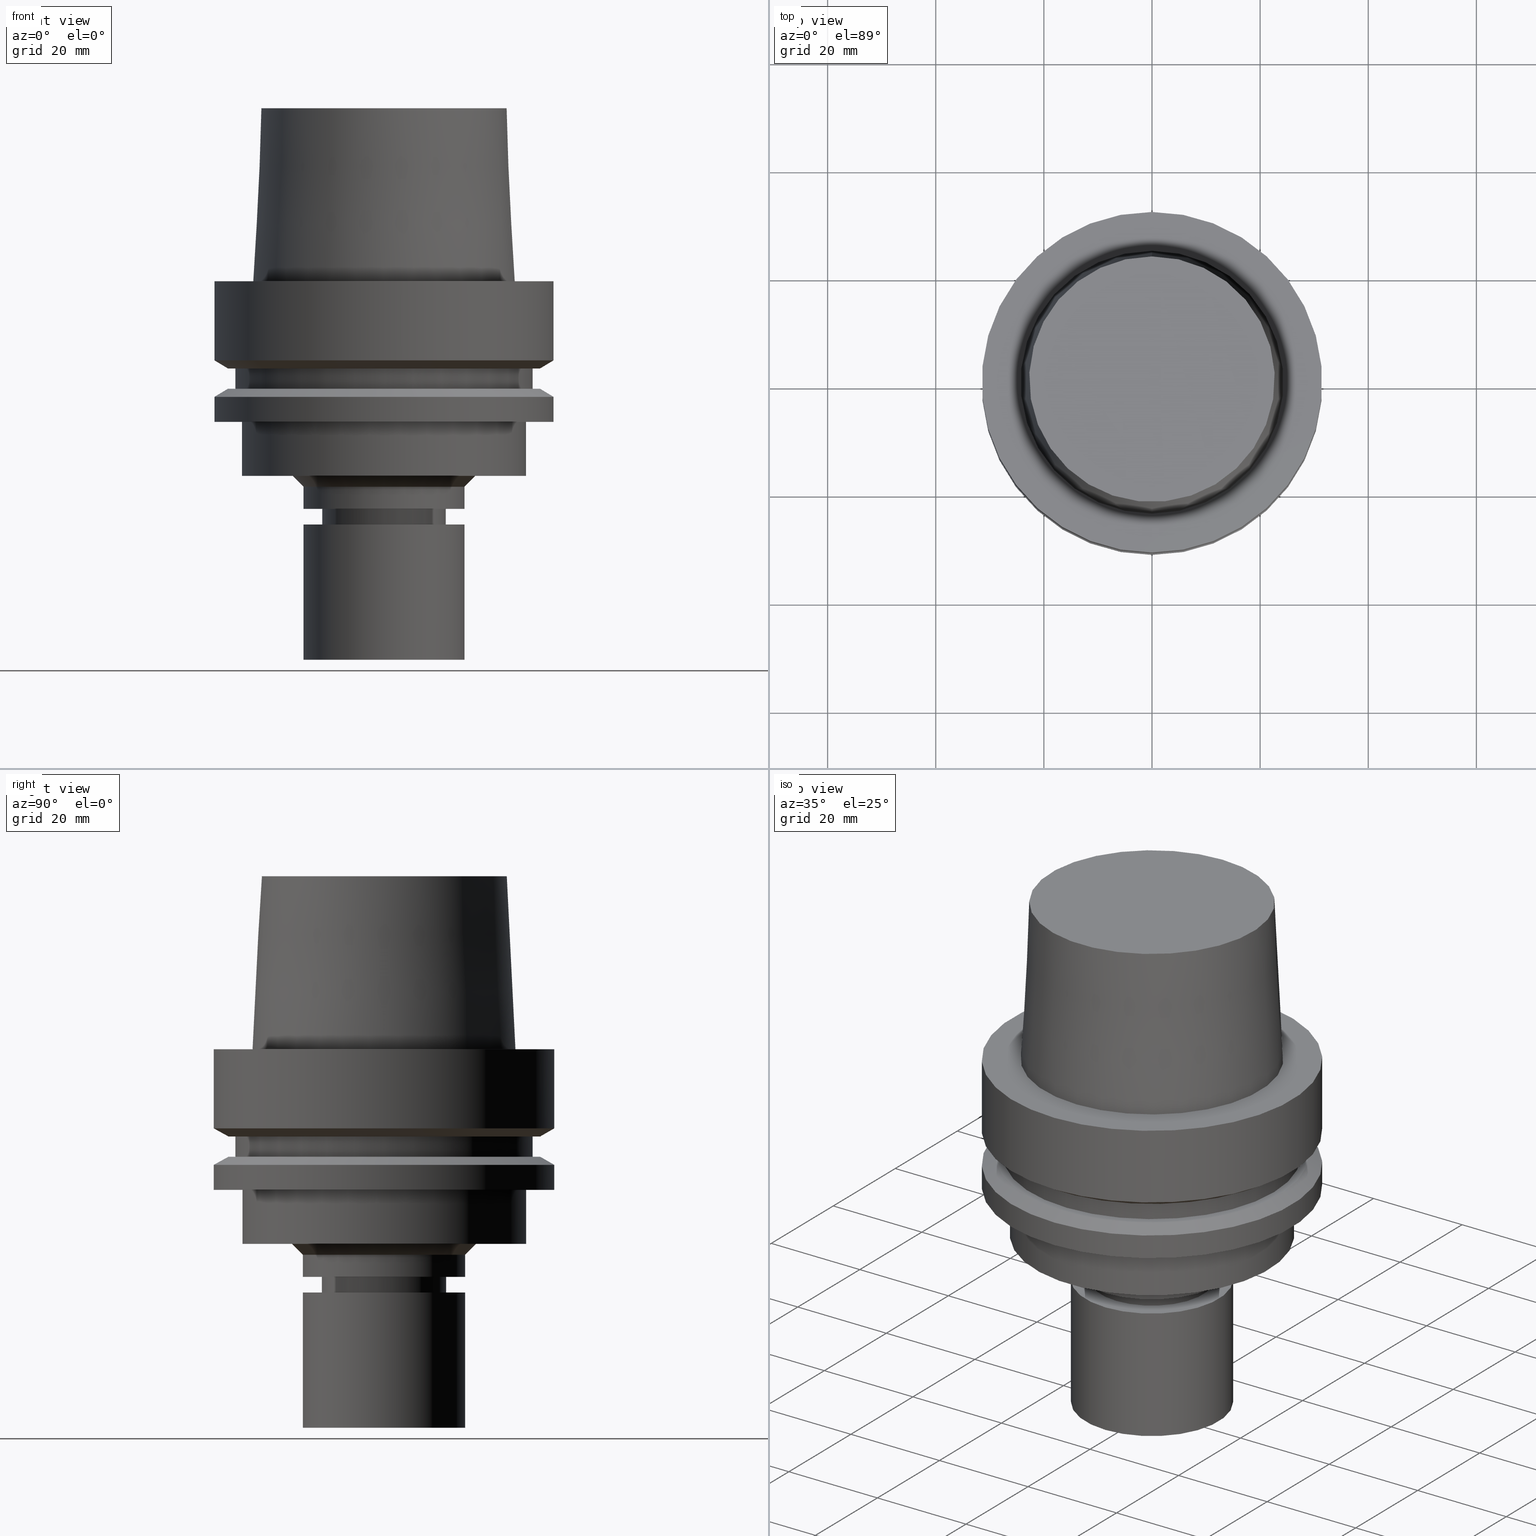
[diagram: canonical four-view strip — front | top / right | iso, engineering-drawing reading convention]
A machine part, canonical four-view strip (front | top / right | iso — engineering-drawing reading convention). The complete STEP part file that produces these views, byte-faithful:
ISO-10303-21;
HEADER;
FILE_DESCRIPTION((''),'1');
FILE_NAME('U:/Translate/02_3D_Field-HP\X2\FF71FF6FFF8CFF9F5916\X0\2013/02_Step_Field-HP\X2\FF71FF6FFF8CFF9F5916\X0\2013/HSK-A63-MEGAER16-70NL.stp','2016-06-21T23:52:45',(''),(''),'Spatial Interop R21 SP3','Kubotek KeyCreator 2011 V10.0.2 (22737)',' ');
FILE_SCHEMA(('automotive_design'));
ENDSEC;
DATA;
#1=MECHANICAL_DESIGN_GEOMETRIC_PRESENTATION_REPRESENTATION(' ',(#14,#15,#16,#17,#18,#19,#20,#21,#22,#23,#24,#25,#26,#27,#28,#29,#30,#31,#32,#33,#34,#35,#36,#37,#38,#39,#40,#41,#42,#43,#44,#45,#46,#47,#48,#49,#50,#51,#52,#53,#54,#55,#56,#57,#58,#59,#60,#61),#10);
#2=PRODUCT_DEFINITION_CONTEXT('',#62,'design');
#3=APPLICATION_PROTOCOL_DEFINITION('INTERNATIONAL STANDARD','automotive_design',1994,#62);
#4=PRODUCT_CATEGORY_RELATIONSHIP('NONE','NONE',#63,#64);
#5=SHAPE_DEFINITION_REPRESENTATION(#65,#66);
#6=PRODUCT_DEFINITION_CONTEXT('',#67,'design');
#7=APPLICATION_PROTOCOL_DEFINITION('INTERNATIONAL STANDARD','automotive_design',1994,#67);
#8=PRODUCT_CATEGORY_RELATIONSHIP('NONE','NONE',#68,#69);
#9=SHAPE_DEFINITION_REPRESENTATION(#70,#71);
#10= (GEOMETRIC_REPRESENTATION_CONTEXT(3)GLOBAL_UNCERTAINTY_ASSIGNED_CONTEXT((#74))GLOBAL_UNIT_ASSIGNED_CONTEXT((#76,#77,#78))REPRESENTATION_CONTEXT('NONE','WORKSPACE'));
#14=STYLED_ITEM('',(#80,#81),#82);
#15=STYLED_ITEM('',(#83),#84);
#16=STYLED_ITEM('',(#85,#86),#87);
#17=STYLED_ITEM('',(#88,#89),#90);
#18=STYLED_ITEM('',(#91,#92),#93);
#19=STYLED_ITEM('',(#94,#95),#96);
#20=STYLED_ITEM('',(#97,#98),#99);
#21=STYLED_ITEM('',(#100),#101);
#22=STYLED_ITEM('',(#102),#103);
#23=STYLED_ITEM('',(#104,#105),#106);
#24=STYLED_ITEM('',(#107),#108);
#25=STYLED_ITEM('',(#109),#110);
#26=STYLED_ITEM('',(#111),#112);
#27=STYLED_ITEM('',(#113),#114);
#28=STYLED_ITEM('',(#115),#116);
#29=STYLED_ITEM('',(#117),#118);
#30=STYLED_ITEM('',(#119,#120),#121);
#31=STYLED_ITEM('',(#122,#123),#124);
#32=STYLED_ITEM('',(#125,#126),#127);
#33=STYLED_ITEM('',(#128,#129),#130);
#34=STYLED_ITEM('',(#131),#132);
#35=STYLED_ITEM('',(#133,#134),#135);
#36=STYLED_ITEM('',(#136),#137);
#37=STYLED_ITEM('',(#138,#139),#140);
#38=STYLED_ITEM('',(#141,#142),#143);
#39=STYLED_ITEM('',(#144),#145);
#40=STYLED_ITEM('',(#146),#147);
#41=STYLED_ITEM('',(#148,#149),#150);
#42=STYLED_ITEM('',(#151),#152);
#43=STYLED_ITEM('',(#153,#154),#155);
#44=STYLED_ITEM('',(#156,#157),#158);
#45=STYLED_ITEM('',(#159),#160);
#46=STYLED_ITEM('',(#161),#162);
#47=STYLED_ITEM('',(#163,#164),#165);
#48=STYLED_ITEM('',(#166,#167),#168);
#49=STYLED_ITEM('',(#169),#170);
#50=STYLED_ITEM('',(#171,#172),#173);
#51=STYLED_ITEM('',(#174),#175);
#52=STYLED_ITEM('',(#176),#177);
#53=STYLED_ITEM('',(#178),#179);
#54=STYLED_ITEM('',(#180),#181);
#55=STYLED_ITEM('',(#182,#183),#184);
#56=STYLED_ITEM('',(#185,#186),#187);
#57=STYLED_ITEM('',(#188,#189),#190);
#58=STYLED_ITEM('',(#191,#192),#193);
#59=STYLED_ITEM('',(#194),#195);
#60=STYLED_ITEM('',(#196,#197),#198);
#61=STYLED_ITEM('',(#199,#200),#201);
#62=APPLICATION_CONTEXT(' ');
#63=PRODUCT_CATEGORY('part','NONE');
#64=PRODUCT_RELATED_PRODUCT_CATEGORY('detail',' ',(#202));
#65=PRODUCT_DEFINITION_SHAPE('NONE','NONE',#203);
#66=ADVANCED_BREP_SHAPE_REPRESENTATION('Unnamed[1]',(#87,#204),#10);
#67=APPLICATION_CONTEXT(' ');
#68=PRODUCT_CATEGORY('part','NONE');
#69=PRODUCT_RELATED_PRODUCT_CATEGORY('detail',' ',(#205));
#70=PRODUCT_DEFINITION_SHAPE('NONE','NONE',#206);
#71=ADVANCED_BREP_SHAPE_REPRESENTATION('Unnamed[1]',(#165,#207),#10);
#74=UNCERTAINTY_MEASURE_WITH_UNIT(LENGTH_MEASURE(1.0E-006),#76,'','');
#76= (CONVERSION_BASED_UNIT('MILLIMETRE',#210)LENGTH_UNIT()NAMED_UNIT(#213));
#77= (NAMED_UNIT(#215)PLANE_ANGLE_UNIT()SI_UNIT($,.RADIAN.));
#78= (NAMED_UNIT(#215)SOLID_ANGLE_UNIT()SI_UNIT($,.STERADIAN.));
#80=PRESENTATION_STYLE_ASSIGNMENT((#221));
#81=PRESENTATION_STYLE_ASSIGNMENT((#222));
#82=ADVANCED_FACE('Unnamed[1]',(#223),#224,.T.);
#83=PRESENTATION_STYLE_ASSIGNMENT((#225));
#84=EDGE_CURVE('Unnamed[1]',#226,#226,#227,.T.);
#85=PRESENTATION_STYLE_ASSIGNMENT((#228));
#86=PRESENTATION_STYLE_ASSIGNMENT((#229));
#87=MANIFOLD_SOLID_BREP('Unnamed[1]',#230);
#88=PRESENTATION_STYLE_ASSIGNMENT((#231));
#89=PRESENTATION_STYLE_ASSIGNMENT((#232));
#90=ADVANCED_FACE('Unnamed[1]',(#233,#234),#235,.T.);
#91=PRESENTATION_STYLE_ASSIGNMENT((#236));
#92=PRESENTATION_STYLE_ASSIGNMENT((#237));
#93=ADVANCED_FACE('Unnamed[1]',(#238,#239),#240,.T.);
#94=PRESENTATION_STYLE_ASSIGNMENT((#241));
#95=PRESENTATION_STYLE_ASSIGNMENT((#242));
#96=ADVANCED_FACE('Unnamed[1]',(#243,#244),#245,.T.);
#97=PRESENTATION_STYLE_ASSIGNMENT((#246));
#98=PRESENTATION_STYLE_ASSIGNMENT((#247));
#99=ADVANCED_FACE('Unnamed[1]',(#248,#249),#250,.T.);
#100=PRESENTATION_STYLE_ASSIGNMENT((#251));
#101=EDGE_CURVE('Unnamed[1]',#252,#252,#253,.T.);
#102=PRESENTATION_STYLE_ASSIGNMENT((#254));
#103=EDGE_CURVE('Unnamed[1]',#255,#255,#256,.T.);
#104=PRESENTATION_STYLE_ASSIGNMENT((#257));
#105=PRESENTATION_STYLE_ASSIGNMENT((#258));
#106=ADVANCED_FACE('Unnamed[1]',(#259,#260),#261,.T.);
#107=PRESENTATION_STYLE_ASSIGNMENT((#262));
#108=EDGE_CURVE('Unnamed[1]',#263,#263,#264,.T.);
#109=PRESENTATION_STYLE_ASSIGNMENT((#265));
#110=EDGE_CURVE('Unnamed[1]',#266,#266,#267,.T.);
#111=PRESENTATION_STYLE_ASSIGNMENT((#268));
#112=EDGE_CURVE('Unnamed[1]',#269,#269,#270,.T.);
#113=PRESENTATION_STYLE_ASSIGNMENT((#271));
#114=EDGE_CURVE('Unnamed[1]',#272,#272,#273,.T.);
#115=PRESENTATION_STYLE_ASSIGNMENT((#274));
#116=EDGE_CURVE('Unnamed[1]',#275,#275,#276,.T.);
#117=PRESENTATION_STYLE_ASSIGNMENT((#277));
#118=EDGE_CURVE('Unnamed[1]',#278,#278,#279,.T.);
#119=PRESENTATION_STYLE_ASSIGNMENT((#280));
#120=PRESENTATION_STYLE_ASSIGNMENT((#281));
#121=ADVANCED_FACE('Unnamed[1]',(#282,#283),#284,.T.);
#122=PRESENTATION_STYLE_ASSIGNMENT((#285));
#123=PRESENTATION_STYLE_ASSIGNMENT((#286));
#124=ADVANCED_FACE('Unnamed[1]',(#287),#288,.T.);
#125=PRESENTATION_STYLE_ASSIGNMENT((#289));
#126=PRESENTATION_STYLE_ASSIGNMENT((#290));
#127=ADVANCED_FACE('Unnamed[1]',(#291,#292),#293,.T.);
#128=PRESENTATION_STYLE_ASSIGNMENT((#294));
#129=PRESENTATION_STYLE_ASSIGNMENT((#295));
#130=ADVANCED_FACE('Unnamed[1]',(#296,#297),#298,.T.);
#131=PRESENTATION_STYLE_ASSIGNMENT((#299));
#132=EDGE_CURVE('Unnamed[1]',#300,#300,#301,.T.);
#133=PRESENTATION_STYLE_ASSIGNMENT((#302));
#134=PRESENTATION_STYLE_ASSIGNMENT((#303));
#135=ADVANCED_FACE('Unnamed[1]',(#304,#305),#306,.T.);
#136=PRESENTATION_STYLE_ASSIGNMENT((#307));
#137=EDGE_CURVE('Unnamed[1]',#308,#308,#309,.T.);
#138=PRESENTATION_STYLE_ASSIGNMENT((#310));
#139=PRESENTATION_STYLE_ASSIGNMENT((#311));
#140=ADVANCED_FACE('Unnamed[1]',(#312,#313),#314,.T.);
#141=PRESENTATION_STYLE_ASSIGNMENT((#315));
#142=PRESENTATION_STYLE_ASSIGNMENT((#316));
#143=ADVANCED_FACE('Unnamed[1]',(#317,#318),#319,.T.);
#144=PRESENTATION_STYLE_ASSIGNMENT((#320));
#145=EDGE_CURVE('Unnamed[1]',#321,#321,#322,.T.);
#146=PRESENTATION_STYLE_ASSIGNMENT((#323));
#147=EDGE_CURVE('Unnamed[1]',#324,#324,#325,.T.);
#148=PRESENTATION_STYLE_ASSIGNMENT((#326));
#149=PRESENTATION_STYLE_ASSIGNMENT((#327));
#150=ADVANCED_FACE('Unnamed[1]',(#328,#329),#330,.T.);
#151=PRESENTATION_STYLE_ASSIGNMENT((#331));
#152=EDGE_CURVE('Unnamed[1]',#332,#332,#333,.T.);
#153=PRESENTATION_STYLE_ASSIGNMENT((#334));
#154=PRESENTATION_STYLE_ASSIGNMENT((#335));
#155=ADVANCED_FACE('Unnamed[1]',(#336,#337),#338,.T.);
#156=PRESENTATION_STYLE_ASSIGNMENT((#339));
#157=PRESENTATION_STYLE_ASSIGNMENT((#340));
#158=ADVANCED_FACE('Unnamed[1]',(#341,#342),#343,.T.);
#159=PRESENTATION_STYLE_ASSIGNMENT((#344));
#160=EDGE_CURVE('Unnamed[1]',#345,#345,#346,.T.);
#161=PRESENTATION_STYLE_ASSIGNMENT((#347));
#162=EDGE_CURVE('Unnamed[1]',#348,#348,#349,.T.);
#163=PRESENTATION_STYLE_ASSIGNMENT((#350));
#164=PRESENTATION_STYLE_ASSIGNMENT((#351));
#165=MANIFOLD_SOLID_BREP('Unnamed[1]',#352);
#166=PRESENTATION_STYLE_ASSIGNMENT((#353));
#167=PRESENTATION_STYLE_ASSIGNMENT((#354));
#168=ADVANCED_FACE('Unnamed[1]',(#355),#356,.T.);
#169=PRESENTATION_STYLE_ASSIGNMENT((#357));
#170=EDGE_CURVE('Unnamed[1]',#358,#358,#359,.T.);
#171=PRESENTATION_STYLE_ASSIGNMENT((#360));
#172=PRESENTATION_STYLE_ASSIGNMENT((#361));
#173=ADVANCED_FACE('Unnamed[1]',(#362,#363),#364,.T.);
#174=PRESENTATION_STYLE_ASSIGNMENT((#365));
#175=EDGE_CURVE('Unnamed[1]',#366,#366,#367,.T.);
#176=PRESENTATION_STYLE_ASSIGNMENT((#368));
#177=EDGE_CURVE('Unnamed[1]',#369,#369,#370,.T.);
#178=PRESENTATION_STYLE_ASSIGNMENT((#371));
#179=EDGE_CURVE('Unnamed[1]',#372,#372,#373,.T.);
#180=PRESENTATION_STYLE_ASSIGNMENT((#374));
#181=EDGE_CURVE('Unnamed[1]',#375,#375,#376,.T.);
#182=PRESENTATION_STYLE_ASSIGNMENT((#377));
#183=PRESENTATION_STYLE_ASSIGNMENT((#378));
#184=ADVANCED_FACE('Unnamed[1]',(#379,#380),#381,.T.);
#185=PRESENTATION_STYLE_ASSIGNMENT((#382));
#186=PRESENTATION_STYLE_ASSIGNMENT((#383));
#187=ADVANCED_FACE('Unnamed[1]',(#384,#385),#386,.T.);
#188=PRESENTATION_STYLE_ASSIGNMENT((#387));
#189=PRESENTATION_STYLE_ASSIGNMENT((#388));
#190=ADVANCED_FACE('Unnamed[1]',(#389,#390),#391,.T.);
#191=PRESENTATION_STYLE_ASSIGNMENT((#392));
#192=PRESENTATION_STYLE_ASSIGNMENT((#393));
#193=ADVANCED_FACE('Unnamed[1]',(#394,#395),#396,.T.);
#194=PRESENTATION_STYLE_ASSIGNMENT((#397));
#195=EDGE_CURVE('Unnamed[1]',#398,#398,#399,.T.);
#196=PRESENTATION_STYLE_ASSIGNMENT((#400));
#197=PRESENTATION_STYLE_ASSIGNMENT((#401));
#198=ADVANCED_FACE('Unnamed[1]',(#402),#403,.T.);
#199=PRESENTATION_STYLE_ASSIGNMENT((#404));
#200=PRESENTATION_STYLE_ASSIGNMENT((#405));
#201=ADVANCED_FACE('Unnamed[1]',(#406,#407),#408,.T.);
#202=PRODUCT('Unnamed[1]','Unnamed[1]','PART-Unnamed[1]-DESC',(#409));
#203=PRODUCT_DEFINITION('NONE','NONE',#410,#2);
#204=AXIS2_PLACEMENT_3D('',#411,#412,#413);
#205=PRODUCT('Unnamed[1]','Unnamed[1]','PART-Unnamed[1]-DESC',(#414));
#206=PRODUCT_DEFINITION('NONE','NONE',#415,#6);
#207=AXIS2_PLACEMENT_3D('',#416,#417,#418);
#210=LENGTH_MEASURE_WITH_UNIT(LENGTH_MEASURE(1.0),#419);
#213=DIMENSIONAL_EXPONENTS(1.0,0.0,0.0,0.0,0.0,0.0,0.0);
#215=DIMENSIONAL_EXPONENTS(0.0,0.0,0.0,0.0,0.0,0.0,0.0);
#221=SURFACE_STYLE_USAGE(.BOTH.,#420);
#222=CURVE_STYLE('',#421,POSITIVE_LENGTH_MEASURE(1000.0),#422);
#223=FACE_OUTER_BOUND('',#423,.T.);
#224=PLANE('',#424);
#225=CURVE_STYLE('',#425,POSITIVE_LENGTH_MEASURE(1000.0),#426);
#226=VERTEX_POINT('',#427);
#227=CIRCLE('',#428,15.0);
#228=SURFACE_STYLE_USAGE(.BOTH.,#429);
#229=CURVE_STYLE('',#430,POSITIVE_LENGTH_MEASURE(1000.0),#431);
#230=CLOSED_SHELL('',(#124,#96,#90,#143,#187,#158,#106,#184,#135,#93,#150,#190,#140,#127,#130,#155,#99,#201,#193,#173,#168));
#231=SURFACE_STYLE_USAGE(.BOTH.,#432);
#232=CURVE_STYLE('',#433,POSITIVE_LENGTH_MEASURE(1000.0),#434);
#233=FACE_BOUND('',#435,.T.);
#234=FACE_BOUND('',#436,.T.);
#235=CYLINDRICAL_SURFACE('',#437,11.0000000000001);
#236=SURFACE_STYLE_USAGE(.BOTH.,#438);
#237=CURVE_STYLE('',#439,POSITIVE_LENGTH_MEASURE(1000.0),#440);
#238=FACE_BOUND('',#441,.T.);
#239=FACE_BOUND('',#442,.T.);
#240=CYLINDRICAL_SURFACE('',#443,26.3);
#241=SURFACE_STYLE_USAGE(.BOTH.,#444);
#242=CURVE_STYLE('',#445,POSITIVE_LENGTH_MEASURE(1000.0),#446);
#243=FACE_BOUND('',#447,.T.);
#244=FACE_BOUND('',#448,.T.);
#245=CONICAL_SURFACE('',#449,10.4499999999999,0.523598775598227);
#246=SURFACE_STYLE_USAGE(.BOTH.,#450);
#247=CURVE_STYLE('',#451,POSITIVE_LENGTH_MEASURE(1000.0),#452);
#248=FACE_BOUND('',#453,.T.);
#249=FACE_BOUND('',#454,.T.);
#250=CONICAL_SURFACE('',#455,30.1987976320959,1.04719755119657);
#251=CURVE_STYLE('',#456,POSITIVE_LENGTH_MEASURE(1000.0),#457);
#252=VERTEX_POINT('',#458);
#253=CIRCLE('',#459,11.0000000000003);
#254=CURVE_STYLE('',#460,POSITIVE_LENGTH_MEASURE(1000.0),#461);
#255=VERTEX_POINT('',#462);
#256=CIRCLE('',#463,11.4999999999907);
#257=SURFACE_STYLE_USAGE(.BOTH.,#464);
#258=CURVE_STYLE('',#465,POSITIVE_LENGTH_MEASURE(1000.0),#466);
#259=FACE_BOUND('',#467,.T.);
#260=FACE_BOUND('',#468,.T.);
#261=CYLINDRICAL_SURFACE('',#469,15.0);
#262=CURVE_STYLE('',#470,POSITIVE_LENGTH_MEASURE(1000.0),#471);
#263=VERTEX_POINT('',#472);
#264=CIRCLE('',#473,15.0);
#265=CURVE_STYLE('',#474,POSITIVE_LENGTH_MEASURE(1000.0),#475);
#266=VERTEX_POINT('',#476);
#267=CIRCLE('',#477,15.0);
#268=CURVE_STYLE('',#478,POSITIVE_LENGTH_MEASURE(1000.0),#479);
#269=VERTEX_POINT('',#480);
#270=CIRCLE('',#481,31.5);
#271=CURVE_STYLE('',#482,POSITIVE_LENGTH_MEASURE(1000.0),#483);
#272=VERTEX_POINT('',#484);
#273=CIRCLE('',#485,24.315);
#274=CURVE_STYLE('',#486,POSITIVE_LENGTH_MEASURE(1000.0),#487);
#275=VERTEX_POINT('',#488);
#276=CIRCLE('',#489,9.89999999999962);
#277=CURVE_STYLE('',#490,POSITIVE_LENGTH_MEASURE(1000.0),#491);
#278=VERTEX_POINT('',#492);
#279=CIRCLE('',#493,17.0);
#280=SURFACE_STYLE_USAGE(.BOTH.,#494);
#281=CURVE_STYLE('',#495,POSITIVE_LENGTH_MEASURE(1000.0),#496);
#282=FACE_BOUND('',#497,.T.);
#283=FACE_BOUND('',#498,.T.);
#284=CYLINDRICAL_SURFACE('',#499,15.0);
#285=SURFACE_STYLE_USAGE(.BOTH.,#500);
#286=CURVE_STYLE('',#501,POSITIVE_LENGTH_MEASURE(1000.0),#502);
#287=FACE_OUTER_BOUND('',#503,.T.);
#288=PLANE('',#504);
#289=SURFACE_STYLE_USAGE(.BOTH.,#505);
#290=CURVE_STYLE('',#506,POSITIVE_LENGTH_MEASURE(1000.0),#507);
#291=FACE_BOUND('',#508,.T.);
#292=FACE_OUTER_BOUND('',#509,.T.);
#293=PLANE('',#510);
#294=SURFACE_STYLE_USAGE(.BOTH.,#511);
#295=CURVE_STYLE('',#512,POSITIVE_LENGTH_MEASURE(1000.0),#513);
#296=FACE_BOUND('',#514,.T.);
#297=FACE_BOUND('',#515,.T.);
#298=CYLINDRICAL_SURFACE('',#516,27.4999999999994);
#299=CURVE_STYLE('',#517,POSITIVE_LENGTH_MEASURE(1000.0),#518);
#300=VERTEX_POINT('',#519);
#301=CIRCLE('',#520,11.5000000000021);
#302=SURFACE_STYLE_USAGE(.BOTH.,#521);
#303=CURVE_STYLE('',#522,POSITIVE_LENGTH_MEASURE(1000.0),#523);
#304=FACE_OUTER_BOUND('',#524,.T.);
#305=FACE_BOUND('',#525,.T.);
#306=PLANE('',#526);
#307=CURVE_STYLE('',#527,POSITIVE_LENGTH_MEASURE(1000.0),#528);
#308=VERTEX_POINT('',#529);
#309=CIRCLE('',#530,10.9999999999999);
#310=SURFACE_STYLE_USAGE(.BOTH.,#531);
#311=CURVE_STYLE('',#532,POSITIVE_LENGTH_MEASURE(1000.0),#533);
#312=FACE_BOUND('',#534,.T.);
#313=FACE_BOUND('',#535,.T.);
#314=CONICAL_SURFACE('',#536,30.1987976320959,1.04719755119657);
#315=SURFACE_STYLE_USAGE(.BOTH.,#537);
#316=CURVE_STYLE('',#538,POSITIVE_LENGTH_MEASURE(1000.0),#539);
#317=FACE_BOUND('',#540,.T.);
#318=FACE_BOUND('',#541,.T.);
#319=CONICAL_SURFACE('',#542,11.250000000001,0.766162649691855);
#320=CURVE_STYLE('',#543,POSITIVE_LENGTH_MEASURE(1000.0),#544);
#321=VERTEX_POINT('',#545);
#322=CIRCLE('',#546,27.4999999999989);
#323=CURVE_STYLE('',#547,POSITIVE_LENGTH_MEASURE(1000.0),#548);
#324=VERTEX_POINT('',#549);
#325=CIRCLE('',#550,31.5000000000001);
#326=SURFACE_STYLE_USAGE(.BOTH.,#551);
#327=CURVE_STYLE('',#552,POSITIVE_LENGTH_MEASURE(1000.0),#553);
#328=FACE_OUTER_BOUND('',#554,.T.);
#329=FACE_BOUND('',#555,.T.);
#330=PLANE('',#556);
#331=CURVE_STYLE('',#557,POSITIVE_LENGTH_MEASURE(1000.0),#558);
#332=VERTEX_POINT('',#559);
#333=CIRCLE('',#560,31.4999999999998);
#334=SURFACE_STYLE_USAGE(.BOTH.,#561);
#335=CURVE_STYLE('',#562,POSITIVE_LENGTH_MEASURE(1000.0),#563);
#336=FACE_OUTER_BOUND('',#564,.T.);
#337=FACE_BOUND('',#565,.T.);
#338=PLANE('',#566);
#339=SURFACE_STYLE_USAGE(.BOTH.,#567);
#340=CURVE_STYLE('',#568,POSITIVE_LENGTH_MEASURE(1000.0),#569);
#341=FACE_OUTER_BOUND('',#570,.T.);
#342=FACE_BOUND('',#571,.T.);
#343=PLANE('',#572);
#344=CURVE_STYLE('',#573,POSITIVE_LENGTH_MEASURE(1000.0),#574);
#345=VERTEX_POINT('',#575);
#346=CIRCLE('',#576,15.0000000000001);
#347=CURVE_STYLE('',#577,POSITIVE_LENGTH_MEASURE(1000.0),#578);
#348=VERTEX_POINT('',#579);
#349=CIRCLE('',#580,26.3);
#350=SURFACE_STYLE_USAGE(.BOTH.,#581);
#351=CURVE_STYLE('',#582,POSITIVE_LENGTH_MEASURE(1000.0),#583);
#352=CLOSED_SHELL('',(#198,#82,#121));
#353=SURFACE_STYLE_USAGE(.BOTH.,#584);
#354=CURVE_STYLE('',#585,POSITIVE_LENGTH_MEASURE(1000.0),#586);
#355=FACE_OUTER_BOUND('',#587,.T.);
#356=PLANE('',#588);
#357=CURVE_STYLE('',#589,POSITIVE_LENGTH_MEASURE(1000.0),#590);
#358=VERTEX_POINT('',#591);
#359=CIRCLE('',#592,26.3);
#360=SURFACE_STYLE_USAGE(.BOTH.,#593);
#361=CURVE_STYLE('',#594,POSITIVE_LENGTH_MEASURE(1000.0),#595);
#362=FACE_BOUND('',#596,.T.);
#363=FACE_BOUND('',#597,.T.);
#364=CONICAL_SURFACE('',#598,23.515,0.0499583957219433);
#365=CURVE_STYLE('',#599,POSITIVE_LENGTH_MEASURE(1000.0),#600);
#366=VERTEX_POINT('',#601);
#367=CIRCLE('',#602,22.715);
#368=CURVE_STYLE('',#603,POSITIVE_LENGTH_MEASURE(1000.0),#604);
#369=VERTEX_POINT('',#605);
#370=CIRCLE('',#606,27.5);
#371=CURVE_STYLE('',#607,POSITIVE_LENGTH_MEASURE(1000.0),#608);
#372=VERTEX_POINT('',#609);
#373=CIRCLE('',#610,28.8975952641919);
#374=CURVE_STYLE('',#611,POSITIVE_LENGTH_MEASURE(1000.0),#612);
#375=VERTEX_POINT('',#613);
#376=CIRCLE('',#614,28.8975952641919);
#377=SURFACE_STYLE_USAGE(.BOTH.,#615);
#378=CURVE_STYLE('',#616,POSITIVE_LENGTH_MEASURE(1000.0),#617);
#379=FACE_BOUND('',#618,.T.);
#380=FACE_BOUND('',#619,.T.);
#381=CONICAL_SURFACE('',#620,16.0,0.785398163397448);
#382=SURFACE_STYLE_USAGE(.BOTH.,#621);
#383=CURVE_STYLE('',#622,POSITIVE_LENGTH_MEASURE(1000.0),#623);
#384=FACE_BOUND('',#624,.T.);
#385=FACE_BOUND('',#625,.T.);
#386=CYLINDRICAL_SURFACE('',#626,11.4999999999964);
#387=SURFACE_STYLE_USAGE(.BOTH.,#627);
#388=CURVE_STYLE('',#628,POSITIVE_LENGTH_MEASURE(1000.0),#629);
#389=FACE_BOUND('',#630,.T.);
#390=FACE_BOUND('',#631,.T.);
#391=CYLINDRICAL_SURFACE('',#632,31.4999999999999);
#392=SURFACE_STYLE_USAGE(.BOTH.,#633);
#393=CURVE_STYLE('',#634,POSITIVE_LENGTH_MEASURE(1000.0),#635);
#394=FACE_BOUND('',#636,.T.);
#395=FACE_OUTER_BOUND('',#637,.T.);
#396=PLANE('',#638);
#397=CURVE_STYLE('',#639,POSITIVE_LENGTH_MEASURE(1000.0),#640);
#398=VERTEX_POINT('',#641);
#399=CIRCLE('',#642,31.5);
#400=SURFACE_STYLE_USAGE(.BOTH.,#643);
#401=CURVE_STYLE('',#644,POSITIVE_LENGTH_MEASURE(1000.0),#645);
#402=FACE_OUTER_BOUND('',#646,.T.);
#403=PLANE('',#647);
#404=SURFACE_STYLE_USAGE(.BOTH.,#648);
#405=CURVE_STYLE('',#649,POSITIVE_LENGTH_MEASURE(1000.0),#650);
#406=FACE_BOUND('',#651,.T.);
#407=FACE_BOUND('',#652,.T.);
#408=CYLINDRICAL_SURFACE('',#653,31.5);
#409=PRODUCT_CONTEXT('',#62,'mechanical');
#410=PRODUCT_DEFINITION_FORMATION_WITH_SPECIFIED_SOURCE(' ','NONE',#202,.NOT_KNOWN.);
#411=CARTESIAN_POINT('',(0.0,0.0,0.0));
#412=DIRECTION('',(0.0,0.0,1.0));
#413=DIRECTION('',(1.0,0.0,0.0));
#414=PRODUCT_CONTEXT('',#67,'mechanical');
#415=PRODUCT_DEFINITION_FORMATION_WITH_SPECIFIED_SOURCE(' ','NONE',#205,.NOT_KNOWN.);
#416=CARTESIAN_POINT('',(0.0,0.0,0.0));
#417=DIRECTION('',(0.0,0.0,1.0));
#418=DIRECTION('',(1.0,0.0,0.0));
#419= (NAMED_UNIT(#213)LENGTH_UNIT()SI_UNIT(.MILLI.,.METRE.));
#420=SURFACE_SIDE_STYLE('',(#655));
#421=DRAUGHTING_PRE_DEFINED_CURVE_FONT('continuous');
#422=COLOUR_RGB('',0.0,1.0,0.0);
#423=EDGE_LOOP('',(#656));
#424=AXIS2_PLACEMENT_3D('',#657,#658,#659);
#425=DRAUGHTING_PRE_DEFINED_CURVE_FONT('continuous');
#426=COLOUR_RGB('',0.0,1.0,0.0);
#427=CARTESIAN_POINT('',(4.28626379701574E-015,15.0,-70.0));
#428=AXIS2_PLACEMENT_3D('',#660,#661,#662);
#429=SURFACE_SIDE_STYLE('',(#663));
#430=DRAUGHTING_PRE_DEFINED_CURVE_FONT('continuous');
#431=COLOUR_RGB('',0.0,1.0,0.0);
#432=SURFACE_SIDE_STYLE('',(#664));
#433=DRAUGHTING_PRE_DEFINED_CURVE_FONT('continuous');
#434=COLOUR_RGB('',0.0,1.0,0.0);
#435=EDGE_LOOP('',(#665));
#436=EDGE_LOOP('',(#666));
#437=AXIS2_PLACEMENT_3D('',#667,#668,#669);
#438=SURFACE_SIDE_STYLE('',(#670));
#439=DRAUGHTING_PRE_DEFINED_CURVE_FONT('continuous');
#440=COLOUR_RGB('',0.0,1.0,0.0);
#441=EDGE_LOOP('',(#671));
#442=EDGE_LOOP('',(#672));
#443=AXIS2_PLACEMENT_3D('',#673,#674,#675);
#444=SURFACE_SIDE_STYLE('',(#676));
#445=DRAUGHTING_PRE_DEFINED_CURVE_FONT('continuous');
#446=COLOUR_RGB('',0.0,1.0,0.0);
#447=EDGE_LOOP('',(#677));
#448=EDGE_LOOP('',(#678));
#449=AXIS2_PLACEMENT_3D('',#679,#680,#681);
#450=SURFACE_SIDE_STYLE('',(#682));
#451=DRAUGHTING_PRE_DEFINED_CURVE_FONT('continuous');
#452=COLOUR_RGB('',0.0,1.0,0.0);
#453=EDGE_LOOP('',(#683));
#454=EDGE_LOOP('',(#684));
#455=AXIS2_PLACEMENT_3D('',#685,#686,#687);
#456=DRAUGHTING_PRE_DEFINED_CURVE_FONT('continuous');
#457=COLOUR_RGB('',0.0,1.0,0.0);
#458=CARTESIAN_POINT('',(3.63075592913102E-015,11.0000000000003,-59.294744111672));
#459=AXIS2_PLACEMENT_3D('',#688,#689,#690);
#460=DRAUGHTING_PRE_DEFINED_CURVE_FONT('continuous');
#461=COLOUR_RGB('',0.0,1.0,0.0);
#462=CARTESIAN_POINT('',(2.57788151921109E-015,11.4999999999907,-42.1000001144153));
#463=AXIS2_PLACEMENT_3D('',#691,#692,#693);
#464=SURFACE_SIDE_STYLE('',(#694));
#465=DRAUGHTING_PRE_DEFINED_CURVE_FONT('continuous');
#466=COLOUR_RGB('',0.0,1.0,0.0);
#467=EDGE_LOOP('',(#695));
#468=EDGE_LOOP('',(#696));
#469=AXIS2_PLACEMENT_3D('',#697,#698,#699);
#470=DRAUGHTING_PRE_DEFINED_CURVE_FONT('continuous');
#471=COLOUR_RGB('',0.0,1.0,0.0);
#472=CARTESIAN_POINT('',(2.57788151921109E-015,15.0,-42.1000001144153));
#473=AXIS2_PLACEMENT_3D('',#700,#701,#702);
#474=DRAUGHTING_PRE_DEFINED_CURVE_FONT('continuous');
#475=COLOUR_RGB('',0.0,1.0,0.0);
#476=CARTESIAN_POINT('',(2.32682891837997E-015,15.0,-38.0));
#477=AXIS2_PLACEMENT_3D('',#703,#704,#705);
#478=DRAUGHTING_PRE_DEFINED_CURVE_FONT('continuous');
#479=COLOUR_RGB('',0.0,1.0,0.0);
#480=CARTESIAN_POINT('',(1.30899429078397E-015,31.5,-21.3774990747592));
#481=AXIS2_PLACEMENT_3D('',#706,#707,#708);
#482=DRAUGHTING_PRE_DEFINED_CURVE_FONT('continuous');
#483=COLOUR_RGB('',0.0,1.0,0.0);
#484=CARTESIAN_POINT('',(-2.99705514225764E-031,24.315,2.97772869212679E-015));
#485=AXIS2_PLACEMENT_3D('',#709,#710,#711);
#486=DRAUGHTING_PRE_DEFINED_CURVE_FONT('continuous');
#487=COLOUR_RGB('',0.0,1.0,0.0);
#488=CARTESIAN_POINT('',(3.74741920539085E-015,9.89999999999963,-61.1999999999991));
#489=AXIS2_PLACEMENT_3D('',#712,#713,#714);
#490=DRAUGHTING_PRE_DEFINED_CURVE_FONT('continuous');
#491=COLOUR_RGB('',0.0,1.0,0.0);
#492=CARTESIAN_POINT('',(2.20436423846524E-015,17.0,-36.0));
#493=AXIS2_PLACEMENT_3D('',#715,#716,#717);
#494=SURFACE_SIDE_STYLE('',(#718));
#495=DRAUGHTING_PRE_DEFINED_CURVE_FONT('continuous');
#496=COLOUR_RGB('',0.0,1.0,0.0);
#497=EDGE_LOOP('',(#719));
#498=EDGE_LOOP('',(#720));
#499=AXIS2_PLACEMENT_3D('',#721,#722,#723);
#500=SURFACE_SIDE_STYLE('',(#724));
#501=DRAUGHTING_PRE_DEFINED_CURVE_FONT('continuous');
#502=COLOUR_RGB('',0.0,1.0,0.0);
#503=EDGE_LOOP('',(#725));
#504=AXIS2_PLACEMENT_3D('',#726,#727,#728);
#505=SURFACE_SIDE_STYLE('',(#729));
#506=DRAUGHTING_PRE_DEFINED_CURVE_FONT('continuous');
#507=COLOUR_RGB('',0.0,1.0,0.0);
#508=EDGE_LOOP('',(#730));
#509=EDGE_LOOP('',(#731));
#510=AXIS2_PLACEMENT_3D('',#732,#733,#734);
#511=SURFACE_SIDE_STYLE('',(#735));
#512=DRAUGHTING_PRE_DEFINED_CURVE_FONT('continuous');
#513=COLOUR_RGB('',0.0,1.0,0.0);
#514=EDGE_LOOP('',(#736));
#515=EDGE_LOOP('',(#737));
#516=AXIS2_PLACEMENT_3D('',#738,#739,#740);
#517=DRAUGHTING_PRE_DEFINED_CURVE_FONT('continuous');
#518=COLOUR_RGB('',0.0,1.0,0.0);
#519=CARTESIAN_POINT('',(2.93372253196589E-015,11.5000000000021,-47.9113248653973));
#520=AXIS2_PLACEMENT_3D('',#741,#742,#743);
#521=SURFACE_SIDE_STYLE('',(#744));
#522=DRAUGHTING_PRE_DEFINED_CURVE_FONT('continuous');
#523=COLOUR_RGB('',0.0,1.0,0.0);
#524=EDGE_LOOP('',(#745));
#525=EDGE_LOOP('',(#746));
#526=AXIS2_PLACEMENT_3D('',#747,#748,#749);
#527=DRAUGHTING_PRE_DEFINED_CURVE_FONT('continuous');
#528=COLOUR_RGB('',0.0,1.0,0.0);
#529=CARTESIAN_POINT('',(2.9655397891279E-015,10.9999999999999,-48.4309401076723));
#530=AXIS2_PLACEMENT_3D('',#750,#751,#752);
#531=SURFACE_SIDE_STYLE('',(#753));
#532=DRAUGHTING_PRE_DEFINED_CURVE_FONT('continuous');
#533=COLOUR_RGB('',0.0,1.0,0.0);
#534=EDGE_LOOP('',(#754));
#535=EDGE_LOOP('',(#755));
#536=AXIS2_PLACEMENT_3D('',#756,#757,#758);
#537=SURFACE_SIDE_STYLE('',(#759));
#538=DRAUGHTING_PRE_DEFINED_CURVE_FONT('continuous');
#539=COLOUR_RGB('',0.0,1.0,0.0);
#540=EDGE_LOOP('',(#760));
#541=EDGE_LOOP('',(#761));
#542=AXIS2_PLACEMENT_3D('',#762,#763,#764);
#543=DRAUGHTING_PRE_DEFINED_CURVE_FONT('continuous');
#544=COLOUR_RGB('',0.0,1.0,0.0);
#545=CARTESIAN_POINT('',(1.21699275665276E-015,27.4999999999989,-19.8750000000013));
#546=AXIS2_PLACEMENT_3D('',#765,#766,#767);
#547=DRAUGHTING_PRE_DEFINED_CURVE_FONT('continuous');
#548=COLOUR_RGB('',0.0,1.0,0.0);
#549=CARTESIAN_POINT('',(-3.88267476788467E-031,31.5000000000001,3.85763741731417E-015));
#550=AXIS2_PLACEMENT_3D('',#768,#769,#770);
#551=SURFACE_SIDE_STYLE('',(#771));
#552=DRAUGHTING_PRE_DEFINED_CURVE_FONT('continuous');
#553=COLOUR_RGB('',0.0,1.0,0.0);
#554=EDGE_LOOP('',(#772));
#555=EDGE_LOOP('',(#773));
#556=AXIS2_PLACEMENT_3D('',#774,#775,#776);
#557=DRAUGHTING_PRE_DEFINED_CURVE_FONT('continuous');
#558=COLOUR_RGB('',0.0,1.0,0.0);
#559=CARTESIAN_POINT('',(1.59204083889155E-015,31.4999999999998,-25.9999999999999));
#560=AXIS2_PLACEMENT_3D('',#777,#778,#779);
#561=SURFACE_SIDE_STYLE('',(#780));
#562=DRAUGHTING_PRE_DEFINED_CURVE_FONT('continuous');
#563=COLOUR_RGB('',0.0,1.0,0.0);
#564=EDGE_LOOP('',(#781));
#565=EDGE_LOOP('',(#782));
#566=AXIS2_PLACEMENT_3D('',#783,#784,#785);
#567=SURFACE_SIDE_STYLE('',(#786));
#568=DRAUGHTING_PRE_DEFINED_CURVE_FONT('continuous');
#569=COLOUR_RGB('',0.0,1.0,0.0);
#570=EDGE_LOOP('',(#787));
#571=EDGE_LOOP('',(#788));
#572=AXIS2_PLACEMENT_3D('',#789,#790,#791);
#573=DRAUGHTING_PRE_DEFINED_CURVE_FONT('continuous');
#574=COLOUR_RGB('',0.0,1.0,0.0);
#575=CARTESIAN_POINT('',(2.75545529808155E-015,15.0000000000001,-45.0));
#576=AXIS2_PLACEMENT_3D('',#792,#793,#794);
#577=DRAUGHTING_PRE_DEFINED_CURVE_FONT('continuous');
#578=COLOUR_RGB('',0.0,1.0,0.0);
#579=CARTESIAN_POINT('',(2.20436423846524E-015,26.3,-36.0));
#580=AXIS2_PLACEMENT_3D('',#795,#796,#797);
#581=SURFACE_SIDE_STYLE('',(#798));
#582=DRAUGHTING_PRE_DEFINED_CURVE_FONT('continuous');
#583=COLOUR_RGB('',0.0,1.0,0.0);
#584=SURFACE_SIDE_STYLE('',(#799));
#585=DRAUGHTING_PRE_DEFINED_CURVE_FONT('continuous');
#586=COLOUR_RGB('',0.0,1.0,0.0);
#587=EDGE_LOOP('',(#800));
#588=AXIS2_PLACEMENT_3D('',#801,#802,#803);
#589=DRAUGHTING_PRE_DEFINED_CURVE_FONT('continuous');
#590=COLOUR_RGB('',0.0,1.0,0.0);
#591=CARTESIAN_POINT('',(1.59204083889154E-015,26.3,-25.9999999999997));
#592=AXIS2_PLACEMENT_3D('',#804,#805,#806);
#593=SURFACE_SIDE_STYLE('',(#807));
#594=DRAUGHTING_PRE_DEFINED_CURVE_FONT('continuous');
#595=COLOUR_RGB('',0.0,1.0,0.0);
#596=EDGE_LOOP('',(#808));
#597=EDGE_LOOP('',(#809));
#598=AXIS2_PLACEMENT_3D('',#810,#811,#812);
#599=DRAUGHTING_PRE_DEFINED_CURVE_FONT('continuous');
#600=COLOUR_RGB('',0.0,1.0,0.0);
#601=CARTESIAN_POINT('',(-1.95943487863576E-015,22.715,32.0));
#602=AXIS2_PLACEMENT_3D('',#813,#814,#815);
#603=DRAUGHTING_PRE_DEFINED_CURVE_FONT('continuous');
#604=COLOUR_RGB('',0.0,1.0,0.0);
#605=CARTESIAN_POINT('',(9.87371481812537E-016,27.5,-16.1249999999997));
#606=AXIS2_PLACEMENT_3D('',#816,#817,#818);
#607=DRAUGHTING_PRE_DEFINED_CURVE_FONT('continuous');
#608=COLOUR_RGB('',0.0,1.0,0.0);
#609=CARTESIAN_POINT('',(1.21699275665268E-015,28.8975952641919,-19.875));
#610=AXIS2_PLACEMENT_3D('',#819,#820,#821);
#611=DRAUGHTING_PRE_DEFINED_CURVE_FONT('continuous');
#612=COLOUR_RGB('',0.0,1.0,0.0);
#613=CARTESIAN_POINT('',(9.87371481812551E-016,28.8975952641919,-16.125));
#614=AXIS2_PLACEMENT_3D('',#822,#823,#824);
#615=SURFACE_SIDE_STYLE('',(#825));
#616=DRAUGHTING_PRE_DEFINED_CURVE_FONT('continuous');
#617=COLOUR_RGB('',0.0,1.0,0.0);
#618=EDGE_LOOP('',(#826));
#619=EDGE_LOOP('',(#827));
#620=AXIS2_PLACEMENT_3D('',#828,#829,#830);
#621=SURFACE_SIDE_STYLE('',(#831));
#622=DRAUGHTING_PRE_DEFINED_CURVE_FONT('continuous');
#623=COLOUR_RGB('',0.0,1.0,0.0);
#624=EDGE_LOOP('',(#832));
#625=EDGE_LOOP('',(#833));
#626=AXIS2_PLACEMENT_3D('',#834,#835,#836);
#627=SURFACE_SIDE_STYLE('',(#837));
#628=DRAUGHTING_PRE_DEFINED_CURVE_FONT('continuous');
#629=COLOUR_RGB('',0.0,1.0,0.0);
#630=EDGE_LOOP('',(#838));
#631=EDGE_LOOP('',(#839));
#632=AXIS2_PLACEMENT_3D('',#840,#841,#842);
#633=SURFACE_SIDE_STYLE('',(#843));
#634=DRAUGHTING_PRE_DEFINED_CURVE_FONT('continuous');
#635=COLOUR_RGB('',0.0,1.0,0.0);
#636=EDGE_LOOP('',(#844));
#637=EDGE_LOOP('',(#845));
#638=AXIS2_PLACEMENT_3D('',#846,#847,#848);
#639=DRAUGHTING_PRE_DEFINED_CURVE_FONT('continuous');
#640=COLOUR_RGB('',0.0,1.0,0.0);
#641=CARTESIAN_POINT('',(8.95369947681261E-016,31.5,-14.6225009252407));
#642=AXIS2_PLACEMENT_3D('',#849,#850,#851);
#643=SURFACE_SIDE_STYLE('',(#852));
#644=DRAUGHTING_PRE_DEFINED_CURVE_FONT('continuous');
#645=COLOUR_RGB('',0.0,1.0,0.0);
#646=EDGE_LOOP('',(#853));
#647=AXIS2_PLACEMENT_3D('',#854,#855,#856);
#648=SURFACE_SIDE_STYLE('',(#857));
#649=DRAUGHTING_PRE_DEFINED_CURVE_FONT('continuous');
#650=COLOUR_RGB('',0.0,1.0,0.0);
#651=EDGE_LOOP('',(#858));
#652=EDGE_LOOP('',(#859));
#653=AXIS2_PLACEMENT_3D('',#860,#861,#862);
#655=SURFACE_STYLE_FILL_AREA(#863);
#656=ORIENTED_EDGE('',*,*,#160,.F.);
#657=CARTESIAN_POINT('',(2.75545529808155E-015,7.50000000000004,-45.0));
#658=DIRECTION('',(-6.12323399573677E-017,-1.22464679914735E-016,1.0));
#659=DIRECTION('',(1.23259516440783E-032,-1.0,-1.22464679914735E-016));
#660=CARTESIAN_POINT('',(4.28626379701574E-015,8.57252759403147E-015,-70.0));
#661=DIRECTION('',(6.12323399573677E-017,1.22464679914735E-016,-1.0));
#662=DIRECTION('',(-1.23259516440783E-032,1.0,1.22464679914735E-016));
#663=SURFACE_STYLE_FILL_AREA(#864);
#664=SURFACE_STYLE_FILL_AREA(#865);
#665=ORIENTED_EDGE('',*,*,#137,.F.);
#666=ORIENTED_EDGE('',*,*,#101,.T.);
#667=CARTESIAN_POINT('',(3.29814785912946E-015,6.59629571825892E-015,-53.8628421096721));
#668=DIRECTION('',(-6.12323399573676E-017,-1.22464679914741E-016,1.0));
#669=DIRECTION('',(-1.23259516440782E-032,1.0,1.22464679914741E-016));
#670=SURFACE_STYLE_FILL_AREA(#866);
#671=ORIENTED_EDGE('',*,*,#170,.F.);
#672=ORIENTED_EDGE('',*,*,#162,.T.);
#673=CARTESIAN_POINT('',(1.89820253867839E-015,3.79640507735677E-015,-30.9999999999998));
#674=DIRECTION('',(-6.12323399573677E-017,-1.22464679914732E-016,1.0));
#675=DIRECTION('',(-1.23259516440797E-032,1.0,1.22464679914732E-016));
#676=SURFACE_STYLE_FILL_AREA(#867);
#677=ORIENTED_EDGE('',*,*,#101,.F.);
#678=ORIENTED_EDGE('',*,*,#116,.T.);
#679=CARTESIAN_POINT('',(3.68908756726093E-015,7.37817513452187E-015,-60.2473720558355));
#680=DIRECTION('',(-6.12323399573677E-017,-1.22464679914751E-016,1.0));
#681=DIRECTION('',(-1.23259516440792E-032,1.0,1.22464679914751E-016));
#682=SURFACE_STYLE_FILL_AREA(#868);
#683=ORIENTED_EDGE('',*,*,#195,.F.);
#684=ORIENTED_EDGE('',*,*,#181,.T.);
#685=CARTESIAN_POINT('',(9.41370714746907E-016,1.88274142949381E-015,-15.3737504626203));
#686=DIRECTION('',(-6.12323399573677E-017,-1.22464679914731E-016,1.0));
#687=DIRECTION('',(-1.23259516440784E-032,1.0,1.22464679914731E-016));
#688=CARTESIAN_POINT('',(3.63075592913102E-015,7.26151185826204E-015,-59.294744111672));
#689=DIRECTION('',(-6.12323399573676E-017,-1.22464679914739E-016,1.0));
#690=DIRECTION('',(-1.2325951644078E-032,1.0,1.22464679914739E-016));
#691=CARTESIAN_POINT('',(2.57788151921109E-015,5.15576303842218E-015,-42.1000001144152));
#692=DIRECTION('',(-6.12323399573677E-017,-1.22464679914745E-016,1.0));
#693=DIRECTION('',(-1.23259516440785E-032,1.0,1.22464679914745E-016));
#694=SURFACE_STYLE_FILL_AREA(#869);
#695=ORIENTED_EDGE('',*,*,#110,.F.);
#696=ORIENTED_EDGE('',*,*,#108,.T.);
#697=CARTESIAN_POINT('',(2.45235521879553E-015,4.90471043759106E-015,-40.0500000572076));
#698=DIRECTION('',(-6.12323399573677E-017,-1.22464679914747E-016,1.0));
#699=DIRECTION('',(-1.23259516440783E-032,1.0,1.22464679914747E-016));
#700=CARTESIAN_POINT('',(2.57788151921109E-015,5.15576303842218E-015,-42.1000001144152));
#701=DIRECTION('',(-6.12323399573677E-017,-1.22464679914747E-016,1.0));
#702=DIRECTION('',(-1.23259516440783E-032,1.0,1.22464679914747E-016));
#703=CARTESIAN_POINT('',(2.32682891837997E-015,4.65365783675994E-015,-38.0));
#704=DIRECTION('',(-6.12323399573677E-017,-1.22464679914747E-016,1.0));
#705=DIRECTION('',(-1.23259516440783E-032,1.0,1.22464679914747E-016));
#706=CARTESIAN_POINT('',(1.30899429078397E-015,2.61798858156794E-015,-21.3774990747592));
#707=DIRECTION('',(-6.12323399573677E-017,-1.22464679914719E-016,1.0));
#708=DIRECTION('',(-1.23259516440783E-032,1.0,1.22464679914719E-016));
#709=CARTESIAN_POINT('',(0.0,0.0,0.0));
#710=DIRECTION('',(-6.12323399573677E-017,-1.22464679914747E-016,1.0));
#711=DIRECTION('',(-1.23259516440776E-032,1.0,1.22464679914747E-016));
#712=CARTESIAN_POINT('',(3.74741920539085E-015,7.49483841078169E-015,-61.1999999999991));
#713=DIRECTION('',(-6.12323399573677E-017,-1.22464679914722E-016,1.0));
#714=DIRECTION('',(-1.23259516440783E-032,1.0,1.22464679914722E-016));
#715=CARTESIAN_POINT('',(2.20436423846524E-015,4.40872847693047E-015,-36.0));
#716=DIRECTION('',(-6.12323399573676E-017,-1.22464679914725E-016,1.0));
#717=DIRECTION('',(-1.23259516440783E-032,1.0,1.22464679914725E-016));
#718=SURFACE_STYLE_FILL_AREA(#870);
#719=ORIENTED_EDGE('',*,*,#84,.F.);
#720=ORIENTED_EDGE('',*,*,#160,.T.);
#721=CARTESIAN_POINT('',(3.52085954754864E-015,7.04171909509728E-015,-57.5));
#722=DIRECTION('',(6.12323399573677E-017,1.22464679914735E-016,-1.0));
#723=DIRECTION('',(-1.23259516440783E-032,1.0,1.22464679914735E-016));
#724=SURFACE_STYLE_FILL_AREA(#871);
#725=ORIENTED_EDGE('',*,*,#116,.F.);
#726=CARTESIAN_POINT('',(3.74741920539087E-015,4.94999999999982,-61.1999999999995));
#727=DIRECTION('',(6.12323399573677E-017,8.05070974123736E-014,-1.0));
#728=DIRECTION('',(4.93446511046614E-030,-1.0,-8.05070974123736E-014));
#729=SURFACE_STYLE_FILL_AREA(#872);
#730=ORIENTED_EDGE('',*,*,#145,.F.);
#731=ORIENTED_EDGE('',*,*,#179,.T.);
#732=CARTESIAN_POINT('',(1.21699275665272E-015,28.1987976320954,-19.8750000000006));
#733=DIRECTION('',(-6.12323399573677E-017,-9.58463617675421E-013,1.0));
#734=DIRECTION('',(-5.86937972270006E-029,1.0,9.58463617675421E-013));
#735=SURFACE_STYLE_FILL_AREA(#873);
#736=ORIENTED_EDGE('',*,*,#177,.F.);
#737=ORIENTED_EDGE('',*,*,#145,.T.);
#738=CARTESIAN_POINT('',(1.10218211923265E-015,2.2043642384653E-015,-18.0000000000005));
#739=DIRECTION('',(-6.12323399573677E-017,-1.22464679914745E-016,1.0));
#740=DIRECTION('',(-1.23259516440786E-032,1.0,1.22464679914745E-016));
#741=CARTESIAN_POINT('',(2.93372253196589E-015,5.86744506393178E-015,-47.9113248653973));
#742=DIRECTION('',(-6.12323399573676E-017,-1.2246467991473E-016,1.0));
#743=DIRECTION('',(-1.2325951644078E-032,1.0,1.2246467991473E-016));
#744=SURFACE_STYLE_FILL_AREA(#874);
#745=ORIENTED_EDGE('',*,*,#162,.F.);
#746=ORIENTED_EDGE('',*,*,#118,.T.);
#747=CARTESIAN_POINT('',(2.20436423846524E-015,21.65,-36.0));
#748=DIRECTION('',(6.12323399573677E-017,1.22464679914735E-016,-1.0));
#749=DIRECTION('',(1.23259516440783E-032,-1.0,-1.22464679914735E-016));
#750=CARTESIAN_POINT('',(2.9655397891279E-015,5.9310795782558E-015,-48.4309401076723));
#751=DIRECTION('',(-6.12323399573677E-017,-1.22464679914743E-016,1.0));
#752=DIRECTION('',(-1.23259516440784E-032,1.0,1.22464679914743E-016));
#753=SURFACE_STYLE_FILL_AREA(#875);
#754=ORIENTED_EDGE('',*,*,#179,.F.);
#755=ORIENTED_EDGE('',*,*,#112,.T.);
#756=CARTESIAN_POINT('',(1.26299352371833E-015,2.52598704743665E-015,-20.6262495373796));
#757=DIRECTION('',(6.12323399573677E-017,1.22464679914731E-016,-1.0));
#758=DIRECTION('',(-1.23259516440784E-032,1.0,1.22464679914731E-016));
#759=SURFACE_STYLE_FILL_AREA(#876);
#760=ORIENTED_EDGE('',*,*,#132,.F.);
#761=ORIENTED_EDGE('',*,*,#137,.T.);
#762=CARTESIAN_POINT('',(2.9496311605469E-015,5.89926232109379E-015,-48.1711324865348));
#763=DIRECTION('',(-6.12323399573677E-017,-1.22464679914718E-016,1.0));
#764=DIRECTION('',(-1.23259516440792E-032,1.0,1.22464679914718E-016));
#765=CARTESIAN_POINT('',(1.21699275665276E-015,2.43398551330553E-015,-19.8750000000013));
#766=DIRECTION('',(-6.12323399573677E-017,-1.22464679914747E-016,1.0));
#767=DIRECTION('',(-1.23259516440788E-032,1.0,1.22464679914747E-016));
#768=CARTESIAN_POINT('',(0.0,0.0,0.0));
#769=DIRECTION('',(-6.12323399573677E-017,-1.22464679914718E-016,1.0));
#770=DIRECTION('',(-1.23259516440783E-032,1.0,1.22464679914718E-016));
#771=SURFACE_STYLE_FILL_AREA(#877);
#772=ORIENTED_EDGE('',*,*,#152,.F.);
#773=ORIENTED_EDGE('',*,*,#170,.T.);
#774=CARTESIAN_POINT('',(1.59204083889155E-015,28.8999999999999,-25.9999999999998));
#775=DIRECTION('',(6.12323399573677E-017,-4.01871712910923E-014,-1.0));
#776=DIRECTION('',(-2.45592738169036E-030,-1.0,4.01871712910923E-014));
#777=CARTESIAN_POINT('',(1.59204083889155E-015,3.1840816777831E-015,-25.9999999999999));
#778=DIRECTION('',(-6.12323399573676E-017,-1.22464679914719E-016,1.0));
#779=DIRECTION('',(-1.23259516440784E-032,1.0,1.22464679914719E-016));
#780=SURFACE_STYLE_FILL_AREA(#878);
#781=ORIENTED_EDGE('',*,*,#181,.F.);
#782=ORIENTED_EDGE('',*,*,#177,.T.);
#783=CARTESIAN_POINT('',(9.87371481812544E-016,28.1987976320959,-16.1249999999999));
#784=DIRECTION('',(6.12323399573677E-017,-1.65108768595307E-013,-1.0));
#785=DIRECTION('',(-1.01051690958394E-029,-1.0,1.65108768595307E-013));
#786=SURFACE_STYLE_FILL_AREA(#879);
#787=ORIENTED_EDGE('',*,*,#108,.F.);
#788=ORIENTED_EDGE('',*,*,#103,.T.);
#789=CARTESIAN_POINT('',(2.57788151921109E-015,13.2499999999954,-42.1000001144153));
#790=DIRECTION('',(6.12323399573677E-017,1.22464679914735E-016,-1.0));
#791=DIRECTION('',(1.23259516440783E-032,-1.0,-1.22464679914735E-016));
#792=CARTESIAN_POINT('',(2.75545529808155E-015,5.51091059616309E-015,-45.0));
#793=DIRECTION('',(6.12323399573677E-017,1.22464679914735E-016,-1.0));
#794=DIRECTION('',(-1.23259516440783E-032,1.0,1.22464679914735E-016));
#795=CARTESIAN_POINT('',(2.20436423846524E-015,4.40872847693047E-015,-36.0));
#796=DIRECTION('',(-6.12323399573677E-017,-1.22464679914732E-016,1.0));
#797=DIRECTION('',(-1.23259516440797E-032,1.0,1.22464679914732E-016));
#798=SURFACE_STYLE_FILL_AREA(#880);
#799=SURFACE_STYLE_FILL_AREA(#881);
#800=ORIENTED_EDGE('',*,*,#175,.T.);
#801=CARTESIAN_POINT('',(-1.95943487863576E-015,11.3575,32.0));
#802=DIRECTION('',(-6.12323399573677E-017,9.72362339746437E-016,1.0));
#803=DIRECTION('',(5.47128686183263E-032,1.0,-9.72362339746437E-016));
#804=CARTESIAN_POINT('',(1.59204083889154E-015,3.18408167778308E-015,-25.9999999999997));
#805=DIRECTION('',(-6.12323399573677E-017,-1.22464679914732E-016,1.0));
#806=DIRECTION('',(-1.23259516440797E-032,1.0,1.22464679914732E-016));
#807=SURFACE_STYLE_FILL_AREA(#882);
#808=ORIENTED_EDGE('',*,*,#175,.F.);
#809=ORIENTED_EDGE('',*,*,#114,.T.);
#810=CARTESIAN_POINT('',(-9.79717439317882E-016,-1.95943487863576E-015,16.0));
#811=DIRECTION('',(6.12323399573677E-017,1.2246467991474E-016,-1.0));
#812=DIRECTION('',(-1.2325951644078E-032,1.0,1.2246467991474E-016));
#813=CARTESIAN_POINT('',(-1.95943487863576E-015,-3.91886975727153E-015,32.0));
#814=DIRECTION('',(-6.12323399573676E-017,-1.22464679914732E-016,1.0));
#815=DIRECTION('',(-1.23259516440784E-032,1.0,1.22464679914732E-016));
#816=CARTESIAN_POINT('',(9.87371481812537E-016,1.97474296362507E-015,-16.1249999999997));
#817=DIRECTION('',(-6.12323399573677E-017,-1.22464679914742E-016,1.0));
#818=DIRECTION('',(-1.23259516440783E-032,1.0,1.22464679914742E-016));
#819=CARTESIAN_POINT('',(1.21699275665268E-015,2.43398551330536E-015,-19.875));
#820=DIRECTION('',(-6.12323399573677E-017,-1.22464679914745E-016,1.0));
#821=DIRECTION('',(-1.23259516440785E-032,1.0,1.22464679914745E-016));
#822=CARTESIAN_POINT('',(9.87371481812552E-016,1.9747429636251E-015,-16.125));
#823=DIRECTION('',(-6.12323399573677E-017,-1.22464679914745E-016,1.0));
#824=DIRECTION('',(-1.23259516440785E-032,1.0,1.22464679914745E-016));
#825=SURFACE_STYLE_FILL_AREA(#883);
#826=ORIENTED_EDGE('',*,*,#118,.F.);
#827=ORIENTED_EDGE('',*,*,#110,.T.);
#828=CARTESIAN_POINT('',(2.2655965784226E-015,4.53119315684521E-015,-37.0));
#829=DIRECTION('',(-6.12323399573677E-017,-1.2246467991476E-016,1.0));
#830=DIRECTION('',(-1.23259516440783E-032,1.0,1.2246467991476E-016));
#831=SURFACE_STYLE_FILL_AREA(#884);
#832=ORIENTED_EDGE('',*,*,#103,.F.);
#833=ORIENTED_EDGE('',*,*,#132,.T.);
#834=CARTESIAN_POINT('',(2.75580202558849E-015,5.51160405117698E-015,-45.0056624899063));
#835=DIRECTION('',(-6.12323399573676E-017,-1.2246467991472E-016,1.0));
#836=DIRECTION('',(-1.23259516440783E-032,1.0,1.2246467991472E-016));
#837=SURFACE_STYLE_FILL_AREA(#885);
#838=ORIENTED_EDGE('',*,*,#112,.F.);
#839=ORIENTED_EDGE('',*,*,#152,.T.);
#840=CARTESIAN_POINT('',(1.45051756483776E-015,2.90103512967552E-015,-23.6887495373796));
#841=DIRECTION('',(-6.12323399573677E-017,-1.22464679914719E-016,1.0));
#842=DIRECTION('',(-1.23259516440783E-032,1.0,1.22464679914719E-016));
#843=SURFACE_STYLE_FILL_AREA(#886);
#844=ORIENTED_EDGE('',*,*,#114,.F.);
#845=ORIENTED_EDGE('',*,*,#147,.T.);
#846=CARTESIAN_POINT('',(-3.43986495507116E-031,27.9075,3.41768305472048E-015));
#847=DIRECTION('',(-6.12323399573677E-017,-1.22464679914735E-016,1.0));
#848=DIRECTION('',(-1.23259516440783E-032,1.0,1.22464679914735E-016));
#849=CARTESIAN_POINT('',(8.95369947681262E-016,1.79073989536252E-015,-14.6225009252407));
#850=DIRECTION('',(-6.12323399573677E-017,-1.22464679914719E-016,1.0));
#851=DIRECTION('',(-1.23259516440783E-032,1.0,1.22464679914719E-016));
#852=SURFACE_STYLE_FILL_AREA(#887);
#853=ORIENTED_EDGE('',*,*,#84,.T.);
#854=CARTESIAN_POINT('',(4.28626379701574E-015,7.50000000000001,-70.0));
#855=DIRECTION('',(6.12323399573677E-017,1.22464679914735E-016,-1.0));
#856=DIRECTION('',(-1.23259516440783E-032,1.0,1.22464679914735E-016));
#857=SURFACE_STYLE_FILL_AREA(#888);
#858=ORIENTED_EDGE('',*,*,#147,.F.);
#859=ORIENTED_EDGE('',*,*,#195,.T.);
#860=CARTESIAN_POINT('',(4.47684973840631E-016,8.95369947681262E-016,-7.31125046262035));
#861=DIRECTION('',(-6.12323399573677E-017,-1.22464679914719E-016,1.0));
#862=DIRECTION('',(-1.23259516440783E-032,1.0,1.22464679914719E-016));
#863=FILL_AREA_STYLE('',(#889));
#864=FILL_AREA_STYLE('',(#890));
#865=FILL_AREA_STYLE('',(#891));
#866=FILL_AREA_STYLE('',(#892));
#867=FILL_AREA_STYLE('',(#893));
#868=FILL_AREA_STYLE('',(#894));
#869=FILL_AREA_STYLE('',(#895));
#870=FILL_AREA_STYLE('',(#896));
#871=FILL_AREA_STYLE('',(#897));
#872=FILL_AREA_STYLE('',(#898));
#873=FILL_AREA_STYLE('',(#899));
#874=FILL_AREA_STYLE('',(#900));
#875=FILL_AREA_STYLE('',(#901));
#876=FILL_AREA_STYLE('',(#902));
#877=FILL_AREA_STYLE('',(#903));
#878=FILL_AREA_STYLE('',(#904));
#879=FILL_AREA_STYLE('',(#905));
#880=FILL_AREA_STYLE('',(#906));
#881=FILL_AREA_STYLE('',(#907));
#882=FILL_AREA_STYLE('',(#908));
#883=FILL_AREA_STYLE('',(#909));
#884=FILL_AREA_STYLE('',(#910));
#885=FILL_AREA_STYLE('',(#911));
#886=FILL_AREA_STYLE('',(#912));
#887=FILL_AREA_STYLE('',(#913));
#888=FILL_AREA_STYLE('',(#914));
#889=FILL_AREA_STYLE_COLOUR('',#915);
#890=FILL_AREA_STYLE_COLOUR('',#916);
#891=FILL_AREA_STYLE_COLOUR('',#917);
#892=FILL_AREA_STYLE_COLOUR('',#918);
#893=FILL_AREA_STYLE_COLOUR('',#919);
#894=FILL_AREA_STYLE_COLOUR('',#920);
#895=FILL_AREA_STYLE_COLOUR('',#921);
#896=FILL_AREA_STYLE_COLOUR('',#922);
#897=FILL_AREA_STYLE_COLOUR('',#923);
#898=FILL_AREA_STYLE_COLOUR('',#924);
#899=FILL_AREA_STYLE_COLOUR('',#925);
#900=FILL_AREA_STYLE_COLOUR('',#926);
#901=FILL_AREA_STYLE_COLOUR('',#927);
#902=FILL_AREA_STYLE_COLOUR('',#928);
#903=FILL_AREA_STYLE_COLOUR('',#929);
#904=FILL_AREA_STYLE_COLOUR('',#930);
#905=FILL_AREA_STYLE_COLOUR('',#931);
#906=FILL_AREA_STYLE_COLOUR('',#932);
#907=FILL_AREA_STYLE_COLOUR('',#933);
#908=FILL_AREA_STYLE_COLOUR('',#934);
#909=FILL_AREA_STYLE_COLOUR('',#935);
#910=FILL_AREA_STYLE_COLOUR('',#936);
#911=FILL_AREA_STYLE_COLOUR('',#937);
#912=FILL_AREA_STYLE_COLOUR('',#938);
#913=FILL_AREA_STYLE_COLOUR('',#939);
#914=FILL_AREA_STYLE_COLOUR('',#940);
#915=COLOUR_RGB('',0.0,1.0,0.0);
#916=COLOUR_RGB('',0.0,1.0,0.0);
#917=COLOUR_RGB('',0.0,1.0,0.0);
#918=COLOUR_RGB('',0.0,1.0,0.0);
#919=COLOUR_RGB('',0.0,1.0,0.0);
#920=COLOUR_RGB('',0.0,1.0,0.0);
#921=COLOUR_RGB('',0.0,1.0,0.0);
#922=COLOUR_RGB('',0.0,1.0,0.0);
#923=COLOUR_RGB('',0.0,1.0,0.0);
#924=COLOUR_RGB('',0.0,1.0,0.0);
#925=COLOUR_RGB('',0.0,1.0,0.0);
#926=COLOUR_RGB('',0.0,1.0,0.0);
#927=COLOUR_RGB('',0.0,1.0,0.0);
#928=COLOUR_RGB('',0.0,1.0,0.0);
#929=COLOUR_RGB('',0.0,1.0,0.0);
#930=COLOUR_RGB('',0.0,1.0,0.0);
#931=COLOUR_RGB('',0.0,1.0,0.0);
#932=COLOUR_RGB('',0.0,1.0,0.0);
#933=COLOUR_RGB('',0.0,1.0,0.0);
#934=COLOUR_RGB('',0.0,1.0,0.0);
#935=COLOUR_RGB('',0.0,1.0,0.0);
#936=COLOUR_RGB('',0.0,1.0,0.0);
#937=COLOUR_RGB('',0.0,1.0,0.0);
#938=COLOUR_RGB('',0.0,1.0,0.0);
#939=COLOUR_RGB('',0.0,1.0,0.0);
#940=COLOUR_RGB('',0.0,1.0,0.0);
ENDSEC;
END-ISO-10303-21;
